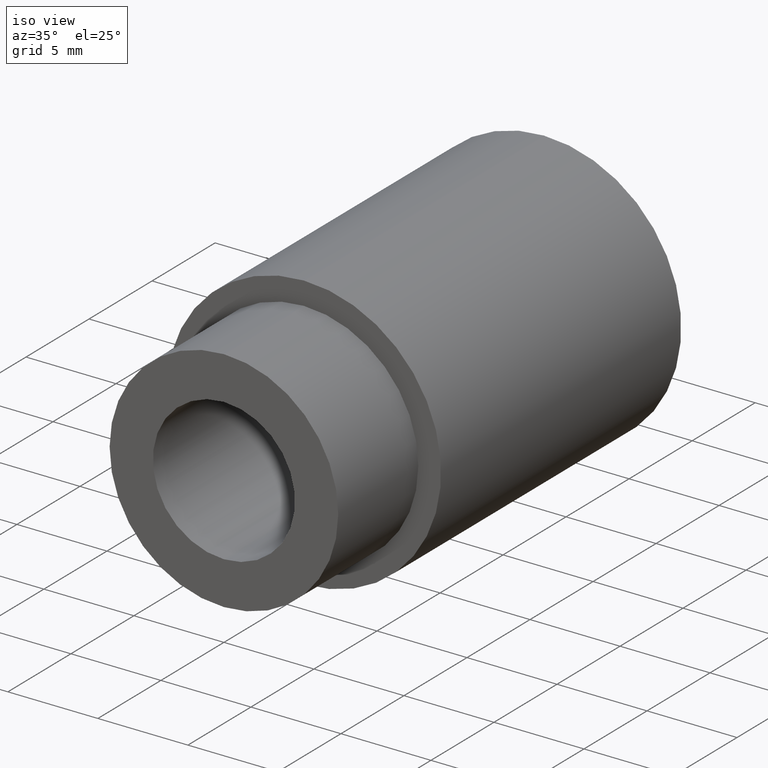
[diagram: clean part render]
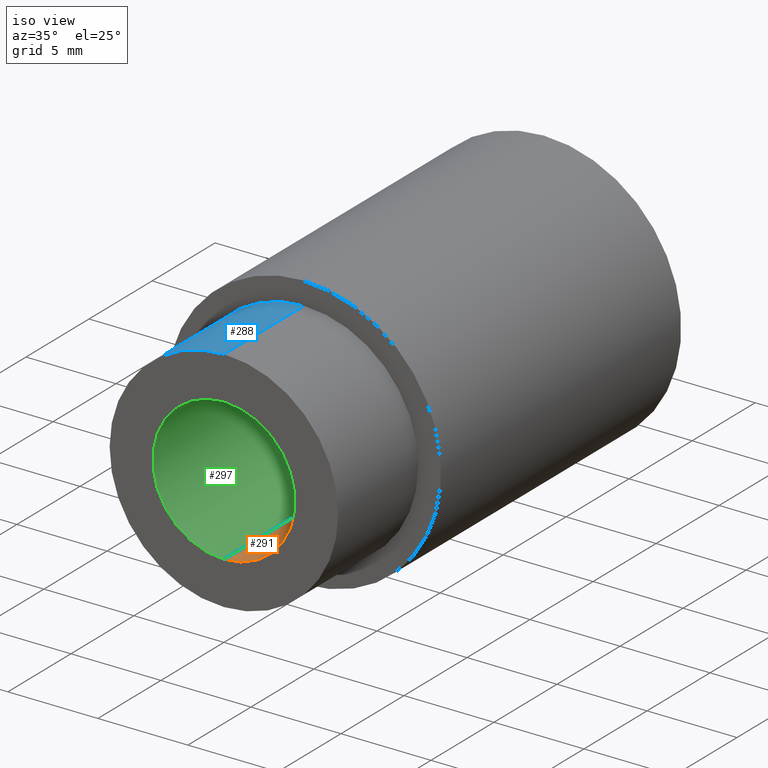
[diagram: same view with three faces highlighted in distinct colors, each labeled with its STEP entity id]
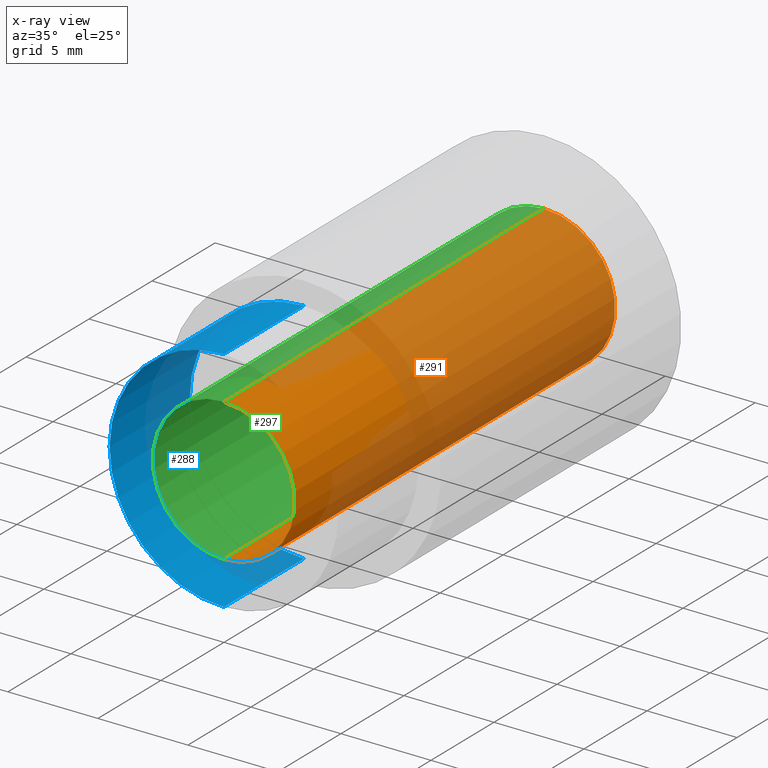
[diagram: x-ray of the same camera — body ghosted, the three highlighted faces saturated]
A machine part, iso view with three faces highlighted in distinct colors.
The next image is the same camera in x-ray (body ghosted, the three faces saturated) — at least one of them is partly hidden behind the body in this view.
Their STEP definitions:

[orange] entity #291 — the highlighted cylindrical surface (partial cylindrical patch) has radius 3.9497 mm, axis along (-0, -1, -0).
#11 = AXIS2_PLACEMENT_3D ( 'NONE', #77, #98, #67 ) ;
#15 = VERTEX_POINT ( 'NONE', #55 ) ;
#21 = EDGE_CURVE ( 'NONE', #143, #15, #199, .T. ) ;
#22 = EDGE_CURVE ( 'NONE', #249, #247, #262, .T. ) ;
#29 = CARTESIAN_POINT ( 'NONE',  ( 0.0000000000000000000, 1.000000000000000000, -0.1555000000000000000 ) ) ;
#30 = CARTESIAN_POINT ( 'NONE',  ( 0.0000000000000000000, 1.000000000000000000, -0.1555000000000000000 ) ) ;
#31 = CARTESIAN_POINT ( 'NONE',  ( 1.904325772674134300E-017, 1.000000000000000000, 0.1555000000000000000 ) ) ;
#34 = DIRECTION ( 'NONE',  ( 0.0000000000000000000, 0.0000000000000000000, -1.000000000000000000 ) ) ;
#48 = CARTESIAN_POINT ( 'NONE',  ( 1.904325772674134300E-017, 1.000000000000000000, 0.1555000000000000000 ) ) ;
#49 = CARTESIAN_POINT ( 'NONE',  ( 1.904325772674134300E-017, 0.0000000000000000000, 0.1555000000000000000 ) ) ;
#55 = CARTESIAN_POINT ( 'NONE',  ( 0.0000000000000000000, 0.0000000000000000000, -0.1555000000000000000 ) ) ;
#58 = DIRECTION ( 'NONE',  ( -0.0000000000000000000, -1.000000000000000000, -0.0000000000000000000 ) ) ;
#67 = DIRECTION ( 'NONE',  ( 0.0000000000000000000, 0.0000000000000000000, -1.000000000000000000 ) ) ;
#70 = DIRECTION ( 'NONE',  ( 0.0000000000000000000, -1.000000000000000000, 0.0000000000000000000 ) ) ;
#77 = CARTESIAN_POINT ( 'NONE',  ( 0.0000000000000000000, 1.000000000000000000, 0.0000000000000000000 ) ) ;
#79 = CARTESIAN_POINT ( 'NONE',  ( 0.0000000000000000000, 1.000000000000000000, 0.0000000000000000000 ) ) ;
#98 = DIRECTION ( 'NONE',  ( -0.0000000000000000000, -1.000000000000000000, -0.0000000000000000000 ) ) ;
#107 = CARTESIAN_POINT ( 'NONE',  ( 0.0000000000000000000, 0.0000000000000000000, 0.0000000000000000000 ) ) ;
#115 = DIRECTION ( 'NONE',  ( 0.0000000000000000000, -1.000000000000000000, 0.0000000000000000000 ) ) ;
#126 = DIRECTION ( 'NONE',  ( -0.0000000000000000000, -1.000000000000000000, -0.0000000000000000000 ) ) ;
#134 = DIRECTION ( 'NONE',  ( 0.0000000000000000000, 0.0000000000000000000, -1.000000000000000000 ) ) ;
#143 = VERTEX_POINT ( 'NONE', #29 ) ;
#149 = EDGE_LOOP ( 'NONE', ( #258, #254, #256, #257 ) ) ;
#169 = FACE_OUTER_BOUND ( 'NONE', #149, .T. ) ;
#174 = CYLINDRICAL_SURFACE ( 'NONE', #11, 0.1555000000000000000 ) ;
#182 = VECTOR ( 'NONE', #58, 39.37007874015748100 ) ;
#199 = LINE ( 'NONE', #30, #182 ) ;
#205 = AXIS2_PLACEMENT_3D ( 'NONE', #107, #115, #134 ) ;
#210 = AXIS2_PLACEMENT_3D ( 'NONE', #79, #70, #34 ) ;
#218 = CIRCLE ( 'NONE', #205, 0.1555000000000000000 ) ;
#222 = CIRCLE ( 'NONE', #210, 0.1555000000000000000 ) ;
#247 = VERTEX_POINT ( 'NONE', #49 ) ;
#249 = VERTEX_POINT ( 'NONE', #48 ) ;
#254 = ORIENTED_EDGE ( 'NONE', *, *, #277, .F. ) ;
#256 = ORIENTED_EDGE ( 'NONE', *, *, #21, .T. ) ;
#257 = ORIENTED_EDGE ( 'NONE', *, *, #272, .T. ) ;
#258 = ORIENTED_EDGE ( 'NONE', *, *, #22, .F. ) ;
#262 = LINE ( 'NONE', #31, #263 ) ;
#263 = VECTOR ( 'NONE', #126, 39.37007874015748100 ) ;
#272 = EDGE_CURVE ( 'NONE', #15, #247, #218, .T. ) ;
#277 = EDGE_CURVE ( 'NONE', #143, #249, #222, .T. ) ;
#291 = ADVANCED_FACE ( 'NONE', ( #169 ), #174, .F. ) ;

[blue] entity #288 — the highlighted cylindrical surface (partial cylindrical patch) has radius 6.35 mm, axis along (-0, -1, -0).
#8 = VERTEX_POINT ( 'NONE', #65 ) ;
#17 = EDGE_CURVE ( 'NONE', #245, #248, #197, .T. ) ;
#26 = DIRECTION ( 'NONE',  ( -0.0000000000000000000, -1.000000000000000000, -0.0000000000000000000 ) ) ;
#32 = CARTESIAN_POINT ( 'NONE',  ( 0.0000000000000000000, 0.2499999999999999700, 0.0000000000000000000 ) ) ;
#40 = DIRECTION ( 'NONE',  ( -0.0000000000000000000, -1.000000000000000000, -0.0000000000000000000 ) ) ;
#41 = DIRECTION ( 'NONE',  ( 0.0000000000000000000, 0.0000000000000000000, -1.000000000000000000 ) ) ;
#54 = DIRECTION ( 'NONE',  ( 0.0000000000000000000, 0.0000000000000000000, -1.000000000000000000 ) ) ;
#56 = CARTESIAN_POINT ( 'NONE',  ( 0.0000000000000000000, -3.061616997868383000E-017, 0.0000000000000000000 ) ) ;
#61 = CARTESIAN_POINT ( 'NONE',  ( 0.0000000000000000000, 0.0000000000000000000, 0.0000000000000000000 ) ) ;
#63 = DIRECTION ( 'NONE',  ( -0.0000000000000000000, -1.000000000000000000, -0.0000000000000000000 ) ) ;
#64 = CARTESIAN_POINT ( 'NONE',  ( 3.061616997868383000E-017, -3.061616997868383000E-017, 0.2500000000000000000 ) ) ;
#65 = CARTESIAN_POINT ( 'NONE',  ( 0.0000000000000000000, -3.061616997868383000E-017, -0.2500000000000000000 ) ) ;
#71 = DIRECTION ( 'NONE',  ( 0.0000000000000000000, 0.0000000000000000000, -1.000000000000000000 ) ) ;
#72 = CARTESIAN_POINT ( 'NONE',  ( 0.0000000000000000000, 0.0000000000000000000, -0.2500000000000000000 ) ) ;
#73 = CARTESIAN_POINT ( 'NONE',  ( 0.0000000000000000000, 0.2499999999999999700, -0.2500000000000000000 ) ) ;
#103 = DIRECTION ( 'NONE',  ( -0.0000000000000000000, -1.000000000000000000, -0.0000000000000000000 ) ) ;
#125 = CARTESIAN_POINT ( 'NONE',  ( 3.061616997868383000E-017, 0.2499999999999999700, 0.2500000000000000000 ) ) ;
#128 = DIRECTION ( 'NONE',  ( -0.0000000000000000000, -1.000000000000000000, -0.0000000000000000000 ) ) ;
#137 = CARTESIAN_POINT ( 'NONE',  ( 3.061616997868383000E-017, 0.0000000000000000000, 0.2500000000000000000 ) ) ;
#166 = FACE_OUTER_BOUND ( 'NONE', #185, .T. ) ;
#168 = CYLINDRICAL_SURFACE ( 'NONE', #213, 0.2500000000000000000 ) ;
#185 = EDGE_LOOP ( 'NONE', ( #187, #259, #238, #232 ) ) ;
#187 = ORIENTED_EDGE ( 'NONE', *, *, #17, .F. ) ;
#197 = LINE ( 'NONE', #137, #198 ) ;
#198 = VECTOR ( 'NONE', #40, 39.37007874015748100 ) ;
#206 = AXIS2_PLACEMENT_3D ( 'NONE', #56, #128, #54 ) ;
#207 = AXIS2_PLACEMENT_3D ( 'NONE', #32, #103, #71 ) ;
#213 = AXIS2_PLACEMENT_3D ( 'NONE', #61, #26, #41 ) ;
#214 = CIRCLE ( 'NONE', #206, 0.2500000000000000000 ) ;
#215 = VECTOR ( 'NONE', #63, 39.37007874015748100 ) ;
#219 = LINE ( 'NONE', #72, #215 ) ;
#220 = CIRCLE ( 'NONE', #207, 0.2500000000000000000 ) ;
#232 = ORIENTED_EDGE ( 'NONE', *, *, #273, .F. ) ;
#238 = ORIENTED_EDGE ( 'NONE', *, *, #271, .T. ) ;
#245 = VERTEX_POINT ( 'NONE', #125 ) ;
#246 = VERTEX_POINT ( 'NONE', #73 ) ;
#248 = VERTEX_POINT ( 'NONE', #64 ) ;
#259 = ORIENTED_EDGE ( 'NONE', *, *, #274, .T. ) ;
#271 = EDGE_CURVE ( 'NONE', #246, #8, #219, .T. ) ;
#273 = EDGE_CURVE ( 'NONE', #248, #8, #214, .T. ) ;
#274 = EDGE_CURVE ( 'NONE', #245, #246, #220, .T. ) ;
#288 = ADVANCED_FACE ( 'NONE', ( #166 ), #168, .T. ) ;

[green] entity #297 — the highlighted cylindrical surface (partial cylindrical patch) has radius 3.9497 mm, axis along (-0, -1, -0).
#2 = CYLINDRICAL_SURFACE ( 'NONE', #153, 0.1555000000000000000 ) ;
#15 = VERTEX_POINT ( 'NONE', #55 ) ;
#20 = EDGE_CURVE ( 'NONE', #247, #15, #194, .T. ) ;
#21 = EDGE_CURVE ( 'NONE', #143, #15, #199, .T. ) ;
#22 = EDGE_CURVE ( 'NONE', #249, #247, #262, .T. ) ;
#23 = EDGE_CURVE ( 'NONE', #249, #143, #265, .T. ) ;
#27 = CARTESIAN_POINT ( 'NONE',  ( 0.0000000000000000000, 0.0000000000000000000, 0.0000000000000000000 ) ) ;
#29 = CARTESIAN_POINT ( 'NONE',  ( 0.0000000000000000000, 1.000000000000000000, -0.1555000000000000000 ) ) ;
#30 = CARTESIAN_POINT ( 'NONE',  ( 0.0000000000000000000, 1.000000000000000000, -0.1555000000000000000 ) ) ;
#31 = CARTESIAN_POINT ( 'NONE',  ( 1.904325772674134300E-017, 1.000000000000000000, 0.1555000000000000000 ) ) ;
#47 = CARTESIAN_POINT ( 'NONE',  ( 0.0000000000000000000, 1.000000000000000000, 0.0000000000000000000 ) ) ;
#48 = CARTESIAN_POINT ( 'NONE',  ( 1.904325772674134300E-017, 1.000000000000000000, 0.1555000000000000000 ) ) ;
#49 = CARTESIAN_POINT ( 'NONE',  ( 1.904325772674134300E-017, 0.0000000000000000000, 0.1555000000000000000 ) ) ;
#55 = CARTESIAN_POINT ( 'NONE',  ( 0.0000000000000000000, 0.0000000000000000000, -0.1555000000000000000 ) ) ;
#57 = DIRECTION ( 'NONE',  ( 0.0000000000000000000, -1.000000000000000000, 0.0000000000000000000 ) ) ;
#58 = DIRECTION ( 'NONE',  ( -0.0000000000000000000, -1.000000000000000000, -0.0000000000000000000 ) ) ;
#60 = DIRECTION ( 'NONE',  ( 0.0000000000000000000, 0.0000000000000000000, -1.000000000000000000 ) ) ;
#81 = DIRECTION ( 'NONE',  ( 0.0000000000000000000, 0.0000000000000000000, -1.000000000000000000 ) ) ;
#92 = DIRECTION ( 'NONE',  ( 0.0000000000000000000, -1.000000000000000000, 0.0000000000000000000 ) ) ;
#105 = DIRECTION ( 'NONE',  ( 0.0000000000000000000, 0.0000000000000000000, -1.000000000000000000 ) ) ;
#108 = CARTESIAN_POINT ( 'NONE',  ( 0.0000000000000000000, 1.000000000000000000, 0.0000000000000000000 ) ) ;
#109 = DIRECTION ( 'NONE',  ( -0.0000000000000000000, -1.000000000000000000, -0.0000000000000000000 ) ) ;
#126 = DIRECTION ( 'NONE',  ( -0.0000000000000000000, -1.000000000000000000, -0.0000000000000000000 ) ) ;
#143 = VERTEX_POINT ( 'NONE', #29 ) ;
#153 = AXIS2_PLACEMENT_3D ( 'NONE', #47, #109, #105 ) ;
#179 = FACE_OUTER_BOUND ( 'NONE', #183, .T. ) ;
#182 = VECTOR ( 'NONE', #58, 39.37007874015748100 ) ;
#183 = EDGE_LOOP ( 'NONE', ( #241, #230, #233, #228 ) ) ;
#194 = CIRCLE ( 'NONE', #282, 0.1555000000000000000 ) ;
#199 = LINE ( 'NONE', #30, #182 ) ;
#228 = ORIENTED_EDGE ( 'NONE', *, *, #21, .F. ) ;
#230 = ORIENTED_EDGE ( 'NONE', *, *, #22, .T. ) ;
#233 = ORIENTED_EDGE ( 'NONE', *, *, #20, .T. ) ;
#241 = ORIENTED_EDGE ( 'NONE', *, *, #23, .F. ) ;
#247 = VERTEX_POINT ( 'NONE', #49 ) ;
#249 = VERTEX_POINT ( 'NONE', #48 ) ;
#262 = LINE ( 'NONE', #31, #263 ) ;
#263 = VECTOR ( 'NONE', #126, 39.37007874015748100 ) ;
#265 = CIRCLE ( 'NONE', #283, 0.1555000000000000000 ) ;
#282 = AXIS2_PLACEMENT_3D ( 'NONE', #27, #57, #60 ) ;
#283 = AXIS2_PLACEMENT_3D ( 'NONE', #108, #92, #81 ) ;
#297 = ADVANCED_FACE ( 'NONE', ( #179 ), #2, .F. ) ;